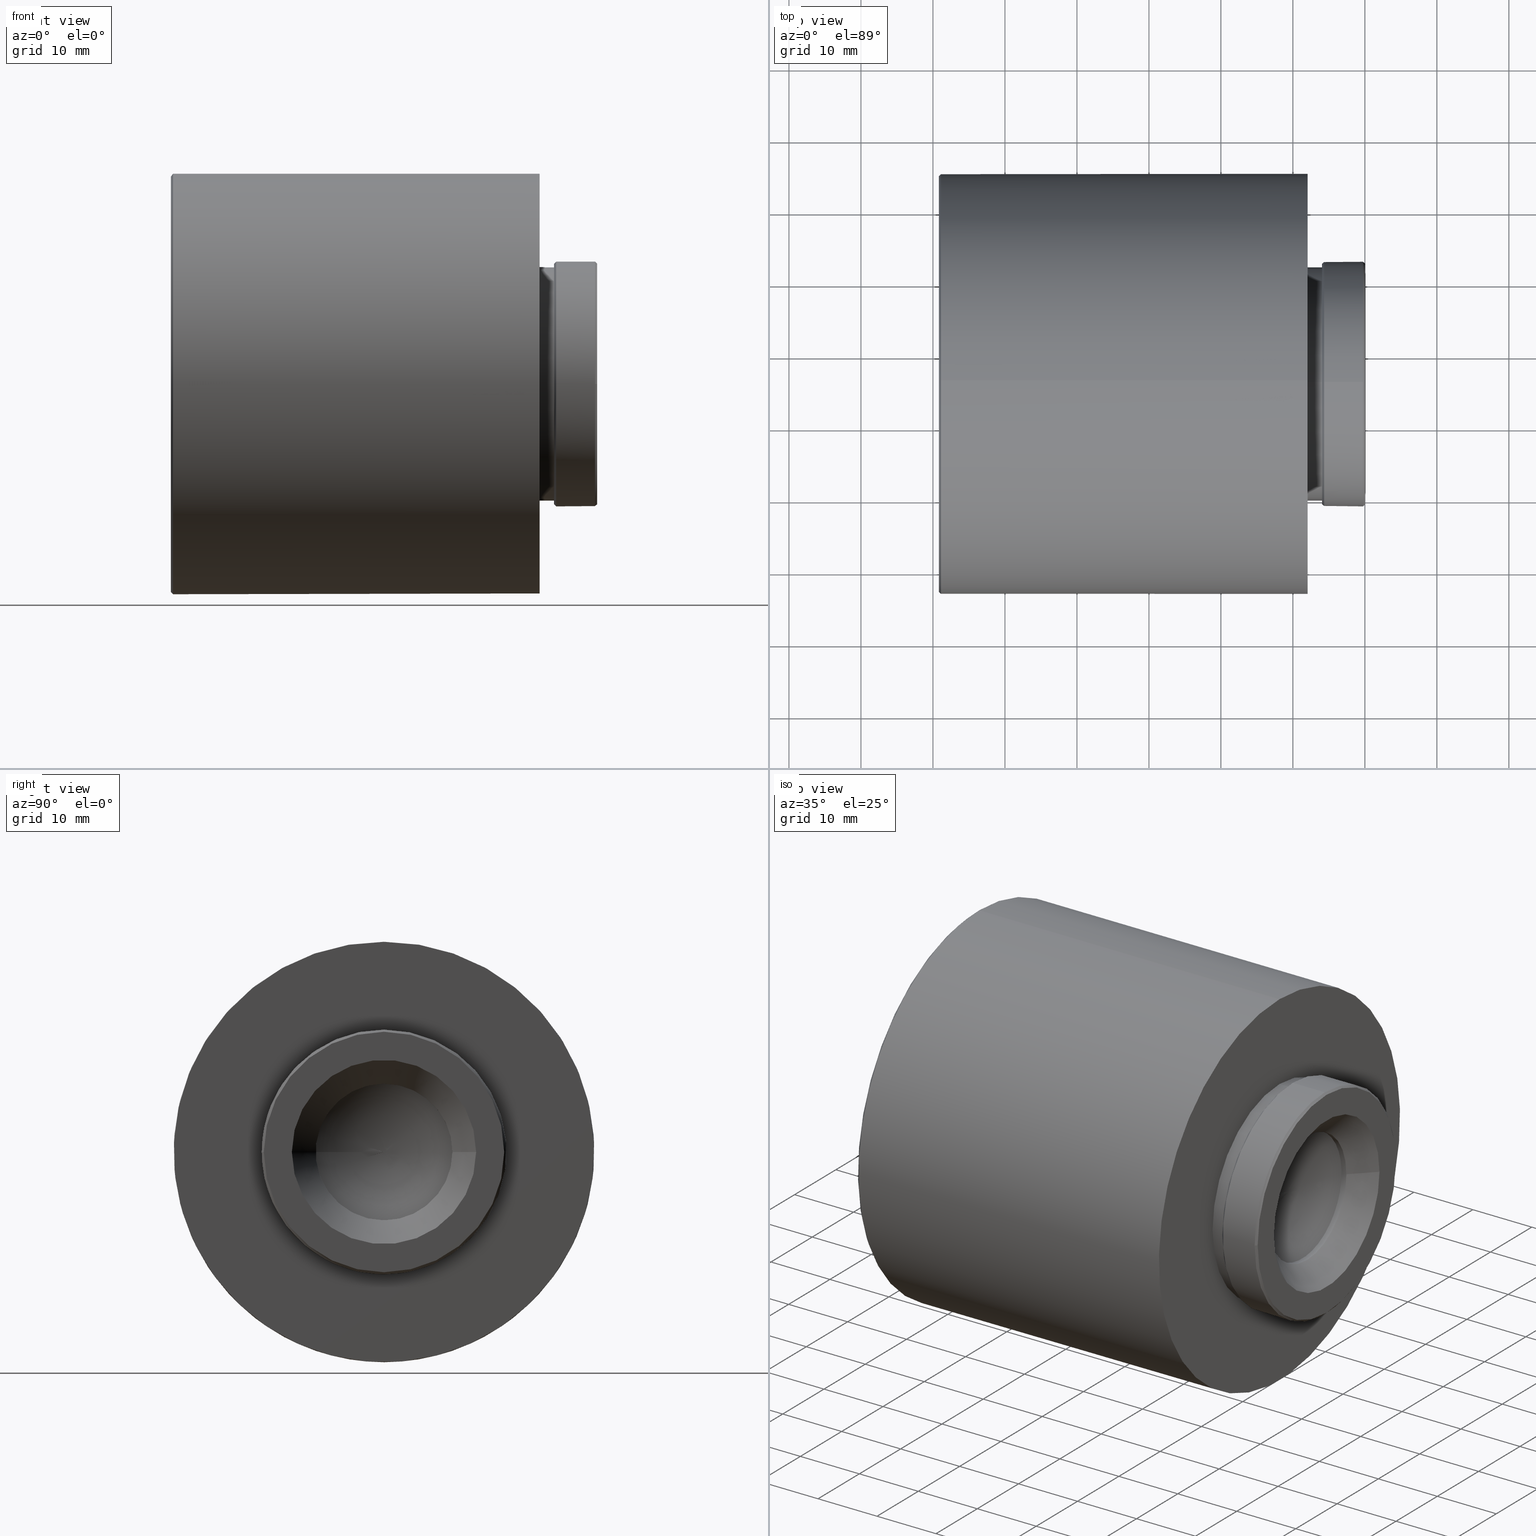
[diagram: canonical four-view strip — front | top / right | iso, engineering-drawing reading convention]
A machine part, canonical four-view strip (front | top / right | iso — engineering-drawing reading convention). The complete STEP part file that produces these views, byte-faithful:
ISO-10303-21;
HEADER;
FILE_DESCRIPTION (( 'STEP AP203' ),
    '1' );
FILE_NAME ('50mm.STEP',
    '2023-08-22T07:39:17',
    ( 'Windows User' ),
    ( 'P R C' ),
    'SwSTEP 2.0',
    'SolidWorks 2020',
    '' );
FILE_SCHEMA (( 'CONFIG_CONTROL_DESIGN' ));
ENDSEC;

DATA;
#1 = DIRECTION ( 'NONE',  ( 1.000000000000000000, -0.000000000000000000, 0.000000000000000000 ) ) ;
#2 = FACE_OUTER_BOUND ( 'NONE', #509, .T. ) ;
#3 = EDGE_LOOP ( 'NONE', ( #311 ) ) ;
#4 = DIRECTION ( 'NONE',  ( -1.000000000000000000, 0.000000000000000000, 0.000000000000000000 ) ) ;
#5 = AXIS2_PLACEMENT_3D ( 'NONE', #160, #501, #151 ) ;
#6 = DIRECTION ( 'NONE',  ( 0.000000000000000000, 0.000000000000000000, -1.000000000000000000 ) ) ;
#7 = AXIS2_PLACEMENT_3D ( 'NONE', #230, #285, #493 ) ;
#8 = EDGE_LOOP ( 'NONE', ( #313 ) ) ;
#9 = EDGE_CURVE ( 'NONE', #302, #302, #541, .T. ) ;
#10 = FACE_OUTER_BOUND ( 'NONE', #521, .T. ) ;
#11 = CARTESIAN_POINT ( 'NONE',  ( 7885.617387922355192, -204.0133481055009383, 0.000000000000000000 ) ) ;
#12 = ORIENTED_EDGE ( 'NONE', *, *, #553, .T. ) ;
#13 = CALENDAR_DATE ( 2023, 22, 8 ) ;
#14 = FACE_OUTER_BOUND ( 'NONE', #505, .T. ) ;
#15 = CARTESIAN_POINT ( 'NONE',  ( 7883.717387922353737, -204.0133481055009383, 27.35000000000037446 ) ) ;
#16 = EDGE_LOOP ( 'NONE', ( #300 ) ) ;
#17 = EDGE_CURVE ( 'NONE', #149, #149, #90, .T. ) ;
#18 = DIRECTION ( 'NONE',  ( -1.000000000000000000, -0.000000000000000000, -0.000000000000000000 ) ) ;
#19 = CIRCLE ( 'NONE', #123, 9.499999999999564793 ) ;
#20 = AXIS2_PLACEMENT_3D ( 'NONE', #529, #280, #33 ) ;
#21 = PRODUCT_RELATED_PRODUCT_CATEGORY ( 'detail', '', ( #170 ) ) ;
#22 = MANIFOLD_SOLID_BREP ( '����1', #365 ) ;
#23 = ORIENTED_EDGE ( 'NONE', *, *, #69, .T. ) ;
#24 = DIRECTION ( 'NONE',  ( 0.000000000000000000, 0.000000000000000000, 1.000000000000000000 ) ) ;
#25 = ADVANCED_FACE ( 'NONE', ( #572, #527 ), #176, .F. ) ;
#26 = CARTESIAN_POINT ( 'NONE',  ( 7923.427387749414265, -204.0133481054744777, -1.694065894508600678E-18 ) ) ;
#27 = CIRCLE ( 'NONE', #115, 27.74999999999999645 ) ;
#28 = CARTESIAN_POINT ( 'NONE',  ( 7884.717387922357375, -204.0133481055009383, 27.74999999999999645 ) ) ;
#29 = CARTESIAN_POINT ( 'NONE',  ( 7925.486479093689013, -212.8648362616712006, 1.694065894508600678E-18 ) ) ;
#30 = DIRECTION ( 'NONE',  ( -1.000000000000000000, 0.000000000000000000, 0.000000000000000000 ) ) ;
#31 = VERTEX_POINT ( 'NONE', #75 ) ;
#32 = CARTESIAN_POINT ( 'NONE',  ( 7924.753938377556551, -196.6624149685411282, -14.70186627394504164 ) ) ;
#33 = DIRECTION ( 'NONE',  ( 0.000000000000000000, 0.000000000000000000, 1.000000000000000000 ) ) ;
#34 = VERTEX_POINT ( 'NONE', #532 ) ;
#35 = DIRECTION ( 'NONE',  ( -1.000000000000000000, -0.000000000000000000, -0.000000000000000000 ) ) ;
#36 = FACE_OUTER_BOUND ( 'NONE', #648, .T. ) ;
#37 = CIRCLE ( 'NONE', #277, 27.75000000004411405 ) ;
#38 = AXIS2_PLACEMENT_3D ( 'NONE', #488, #539, #185 ) ;
#39 = CARTESIAN_POINT ( 'NONE',  ( 7923.986057118371718, -208.9824853522602837, 1.694065894508600678E-18 ) ) ;
#40 = FACE_OUTER_BOUND ( 'NONE', #121, .T. ) ;
#41 = DIRECTION ( 'NONE',  ( -1.000000000000000000, -0.000000000000000000, -0.000000000000000000 ) ) ;
#42 = DIRECTION ( 'NONE',  ( -1.000000000000000000, -0.000000000000000000, -0.000000000000000000 ) ) ;
#43 = ADVANCED_FACE ( 'NONE', ( #122, #268 ), #525, .F. ) ;
#44 = APPROVAL_ROLE ( '' ) ;
#45 = DIRECTION ( 'NONE',  ( 0.000000000000000000, 0.000000000000000000, -1.000000000000000000 ) ) ;
#46 = FACE_OUTER_BOUND ( 'NONE', #620, .T. ) ;
#47 = ORIENTED_EDGE ( 'NONE', *, *, #239, .T. ) ;
#48 = CC_DESIGN_DATE_AND_TIME_ASSIGNMENT ( #163, #57, ( #436 ) ) ;
#49 = AXIS2_PLACEMENT_3D ( 'NONE', #362, #632, #334 ) ;
#50 = CIRCLE ( 'NONE', #479, 27.35000000000037446 ) ;
#51 = CARTESIAN_POINT ( 'NONE',  ( 7924.038068922356615, 2.815183843889711050E-08, 0.000000000000000000 ) ) ;
#52 = CYLINDRICAL_SURFACE ( 'NONE', #124, 17.00000000000047251 ) ;
#53 = EDGE_LOOP ( 'NONE', ( #617 ) ) ;
#54 = CARTESIAN_POINT ( 'NONE',  ( 7884.031329051583270, -230.9651269956691522, -7.798698396183610271 ) ) ;
#55 = FACE_OUTER_BOUND ( 'NONE', #428, .T. ) ;
#56 = EDGE_LOOP ( 'NONE', ( #443 ) ) ;
#57 = DATE_TIME_ROLE ( 'classification_date' ) ;
#58 = FACE_BOUND ( 'NONE', #469, .T. ) ;
#59 = CC_DESIGN_PERSON_AND_ORGANIZATION_ASSIGNMENT ( #195, #601, ( #332 ) ) ;
#60 = CARTESIAN_POINT ( 'NONE',  ( 7930.038068922354796, -220.7133481055016944, 0.000000000000000000 ) ) ;
#61 = EDGE_LOOP ( 'NONE', ( #159 ) ) ;
#62 = CALENDAR_DATE ( 2023, 22, 8 ) ;
#63 = PLANE ( 'NONE',  #530 ) ;
#64 = CARTESIAN_POINT ( 'NONE',  ( 7930.038068922354796, -204.0133481055009383, 0.000000000000000000 ) ) ;
#65 = ORIENTED_EDGE ( 'NONE', *, *, #368, .F. ) ;
#66 = DIRECTION ( 'NONE',  ( 0.000000000000000000, 0.000000000000000000, 1.000000000000000000 ) ) ;
#67 = CARTESIAN_POINT ( 'NONE',  ( 7924.338068922354068, -204.0133481055009383, -17.00000000000001421 ) ) ;
#68 = EDGE_LOOP ( 'NONE', ( #114 ) ) ;
#69 = EDGE_CURVE ( 'NONE', #208, #208, #19, .T. ) ;
#70 = CARTESIAN_POINT ( 'NONE',  ( 7883.717387922355556, -7.002147650975270773E-08, 0.000000000000000000 ) ) ;
#71 = CARTESIAN_POINT ( 'NONE',  ( 7877.417387922359012, -6.996552126931153367E-08, 0.000000000000000000 ) ) ;
#72 = AXIS2_PLACEMENT_3D ( 'NONE', #498, #548, #106 ) ;
#73 = DESIGN_CONTEXT ( 'detailed design', #471, 'design' ) ;
#74 = DIRECTION ( 'NONE',  ( 0.000000000000000000, 0.000000000000000000, 1.000000000000000000 ) ) ;
#75 = CARTESIAN_POINT ( 'NONE',  ( 7885.617387922355192, -204.0133481055009383, 27.25000000000060751 ) ) ;
#76 = CARTESIAN_POINT ( 'NONE',  ( 7923.427387749412446, -204.0133481054744493, 6.011857508939859769E-11 ) ) ;
#77 = CARTESIAN_POINT ( 'NONE',  ( 7925.917387922367197, -213.5717338463544763, 0.000000000000000000 ) ) ;
#78 = CARTESIAN_POINT ( 'NONE',  ( 7925.917387922355374, -213.5717338463609565, 1.694065894508600678E-18 ) ) ;
#79 = CARTESIAN_POINT ( 'NONE',  ( 7924.338068922354068, -204.0133481055009383, 0.000000000000000000 ) ) ;
#80 = AXIS2_PLACEMENT_3D ( 'NONE', #105, #192, #349 ) ;
#81 = APPROVAL_PERSON_ORGANIZATION ( #96, #257, #44 ) ;
#82 = CARTESIAN_POINT ( 'NONE',  ( 7923.986057118370809, -208.9824853522602552, 9.938274493503762130 ) ) ;
#83 = FACE_OUTER_BOUND ( 'NONE', #8, .T. ) ;
#84 = EDGE_CURVE ( 'NONE', #565, #565, #37, .T. ) ;
#85 = CARTESIAN_POINT ( 'NONE',  ( 7924.753938377453778, -211.3642812424861859, 1.694065894508600678E-18 ) ) ;
#86 = CARTESIAN_POINT ( 'NONE',  ( 7884.717387922357375, 0.000000000000000000, 0.000000000000000000 ) ) ;
#87 = DIRECTION ( 'NONE',  ( 0.000000000000000000, 0.000000000000000000, 1.000000000000000000 ) ) ;
#88 = CARTESIAN_POINT ( 'NONE',  ( 7923.427387749406989, -204.8472025372736312, 1.667708863538230890 ) ) ;
#89 = DIRECTION ( 'NONE',  ( 0.000000000000000000, 0.000000000000000000, 1.000000000000000000 ) ) ;
#90 = CIRCLE ( 'NONE', #337, 27.95000000004438334 ) ;
#91 = AXIS2_PLACEMENT_3D ( 'NONE', #182, #634, #442 ) ;
#92 = FACE_OUTER_BOUND ( 'NONE', #467, .T. ) ;
#93 = EDGE_CURVE ( 'NONE', #608, #608, #516, .T. ) ;
#94 = DIRECTION ( 'NONE',  ( 0.000000000000000000, 0.000000000000000000, 1.000000000000000000 ) ) ;
#95 = ORIENTED_EDGE ( 'NONE', *, *, #154, .F. ) ;
#96 = PERSON_AND_ORGANIZATION ( #646, #366 ) ;
#97 = DIRECTION ( 'NONE',  ( 0.000000000000000000, 0.000000000000000000, -1.000000000000000000 ) ) ;
#98 = CC_DESIGN_PERSON_AND_ORGANIZATION_ASSIGNMENT ( #120, #171, ( #583 ) ) ;
#99 = PLANE ( 'NONE',  #308 ) ;
#100 = CARTESIAN_POINT ( 'NONE',  ( 7883.851557932202923, -215.3549095712787960, -30.23017818756218844 ) ) ;
#101 = CARTESIAN_POINT ( 'NONE',  ( 7871.117387922360649, -204.0133481055009383, 0.000000000000000000 ) ) ;
#102 = ORIENTED_EDGE ( 'NONE', *, *, #304, .T. ) ;
#103 = AXIS2_PLACEMENT_3D ( 'NONE', #481, #289, #581 ) ;
#104 = AXIS2_PLACEMENT_3D ( 'NONE', #64, #291, #613 ) ;
#105 = CARTESIAN_POINT ( 'NONE',  ( 7930.038068922354796, -204.0133481055009383, 0.000000000000000000 ) ) ;
#106 = DIRECTION ( 'NONE',  ( 0.000000000000000000, 0.000000000000000000, -1.000000000000000000 ) ) ;
#107 = EDGE_LOOP ( 'NONE', ( #153 ) ) ;
#108 = ADVANCED_FACE ( 'NONE', ( #371 ), #556, .F. ) ;
#109 = FACE_OUTER_BOUND ( 'NONE', #119, .T. ) ;
#110 = CARTESIAN_POINT ( 'NONE',  ( 7868.129146359433435, -204.0133481055009383, 0.000000000000000000 ) ) ;
#111 = EDGE_LOOP ( 'NONE', ( #512 ) ) ;
#112 = CARTESIAN_POINT ( 'NONE',  ( 7865.752709198794946, -215.3549095712787675, 12.52431229562725790 ) ) ;
#113 = CARTESIAN_POINT ( 'NONE',  ( 7868.129146359433435, -204.0133481055009383, 0.000000000000000000 ) ) ;
#114 = ORIENTED_EDGE ( 'NONE', *, *, #9, .F. ) ;
#115 = AXIS2_PLACEMENT_3D ( 'NONE', #418, #264, #465 ) ;
#116 = CARTESIAN_POINT ( 'NONE',  ( 7877.917387922356284, -4.664664143747144941E-08, 0.000000000000000000 ) ) ;
#117 = AXIS2_PLACEMENT_3D ( 'NONE', #11, #147, #401 ) ;
#118 = ADVANCED_FACE ( 'NONE', ( #229, #281 ), #335, .F. ) ;
#119 = EDGE_LOOP ( 'NONE', ( #415 ) ) ;
#120 = PERSON_AND_ORGANIZATION ( #646, #366 ) ;
#121 = EDGE_LOOP ( 'NONE', ( #652 ) ) ;
#122 = FACE_BOUND ( 'NONE', #462, .T. ) ;
#123 = AXIS2_PLACEMENT_3D ( 'NONE', #473, #174, #375 ) ;
#124 = AXIS2_PLACEMENT_3D ( 'NONE', #508, #359, #414 ) ;
#125 = CC_DESIGN_SECURITY_CLASSIFICATION ( #436, ( #583 ) ) ;
#126 = ADVANCED_FACE ( 'NONE', ( #588, #92 ), #288, .F. ) ;
#127 = VERTEX_POINT ( 'NONE', #466 ) ;
#128 = CARTESIAN_POINT ( 'NONE',  ( 7923.427387749413356, -204.0133481055345612, 1.694065894508600678E-18 ) ) ;
#129 = VERTEX_POINT ( 'NONE', #310 ) ;
#130 = CC_DESIGN_PERSON_AND_ORGANIZATION_ASSIGNMENT ( #611, #312, ( #436 ) ) ;
#131 = ORIENTED_EDGE ( 'NONE', *, *, #407, .F. ) ;
#132 = CARTESIAN_POINT ( 'NONE',  ( 7926.738068922353705, -204.0133481055009383, -9.499999999998204103 ) ) ;
#133 = CARTESIAN_POINT ( 'NONE',  ( 7923.986057118439930, -199.0442108587564292, -9.938274493503818974 ) ) ;
#134 = ADVANCED_FACE ( 'NONE', ( #484, #181 ), #432, .T. ) ;
#135 = DIRECTION ( 'NONE',  ( 0.000000000000000000, 0.000000000000000000, 1.000000000000000000 ) ) ;
#136 = CIRCLE ( 'NONE', #137, 17.00000000000001421 ) ;
#137 = AXIS2_PLACEMENT_3D ( 'NONE', #79, #242, #430 ) ;
#138 = CC_DESIGN_APPROVAL ( #213, ( #436 ) ) ;
#139 = CARTESIAN_POINT ( 'NONE',  ( 7923.427387749408808, -204.8472025372736596, 1.694065894508600678E-18 ) ) ;
#140 = PLANE ( 'NONE',  #396 ) ;
#141 = CARTESIAN_POINT ( 'NONE',  ( 7923.427387749420632, -203.1794936737354078, -1.667708863538286179 ) ) ;
#142 = CARTESIAN_POINT ( 'NONE',  ( 7868.129146359433435, -204.0133481055009383, 0.000000000000000000 ) ) ;
#143 = CC_DESIGN_DATE_AND_TIME_ASSIGNMENT ( #464, #416, ( #332 ) ) ;
#144 = CARTESIAN_POINT ( 'NONE',  ( 7925.917387922355374, -213.5717338463609565, -19.11677148167850859 ) ) ;
#145 = DIRECTION ( 'NONE',  ( -1.000000000000000000, -0.000000000000000000, -0.000000000000000000 ) ) ;
#146 = CARTESIAN_POINT ( 'NONE',  ( 7924.753938377455597, -211.3642812424861575, -14.70186627394498480 ) ) ;
#147 = DIRECTION ( 'NONE',  ( -1.000000000000000000, 0.000000000000000000, 0.000000000000000000 ) ) ;
#148 = CARTESIAN_POINT ( 'NONE',  ( 7883.877952462006760, -177.1731822840436621, 7.744730964376506321 ) ) ;
#149 = VERTEX_POINT ( 'NONE', #152 ) ;
#150 = ORIENTED_EDGE ( 'NONE', *, *, #269, .T. ) ;
#151 = DIRECTION ( 'NONE',  ( 0.000000000000000000, 0.000000000000000000, 1.000000000000000000 ) ) ;
#152 = CARTESIAN_POINT ( 'NONE',  ( 7877.917387922358103, -204.0133481055009383, 27.95000000004438334 ) ) ;
#153 = ORIENTED_EDGE ( 'NONE', *, *, #482, .T. ) ;
#154 = EDGE_CURVE ( 'NONE', #511, #511, #373, .T. ) ;
#155 = PERSON_AND_ORGANIZATION ( #646, #366 ) ;
#156 = CIRCLE ( 'NONE', #470, 29.20000000000001705 ) ;
#157 = CARTESIAN_POINT ( 'NONE',  ( 7895.094178066676250, -230.9651269956691522, 18.55616643682367339 ) ) ;
#158 = FACE_OUTER_BOUND ( 'NONE', #194, .T. ) ;
#159 = ORIENTED_EDGE ( 'NONE', *, *, #417, .T. ) ;
#160 = CARTESIAN_POINT ( 'NONE',  ( 7884.717387922357375, -204.0133481055009383, 0.000000000000000000 ) ) ;
#161 = FACE_BOUND ( 'NONE', #162, .T. ) ;
#162 = EDGE_LOOP ( 'NONE', ( #23 ) ) ;
#163 = DATE_AND_TIME ( #200, #427 ) ;
#164 = ADVANCED_FACE ( 'NONE', ( #606, #460 ), #354, .T. ) ;
#165 = CARTESIAN_POINT ( 'NONE',  ( 7870.817387922364105, 3.647316599798808341E-08, 0.000000000000000000 ) ) ;
#166 = VERTEX_POINT ( 'NONE', #535 ) ;
#167 = ORIENTED_EDGE ( 'NONE', *, *, #577, .F. ) ;
#168 = LOCAL_TIME ( 15, 39, 17.00000000000000000, #644 ) ;
#169 = ORIENTED_EDGE ( 'NONE', *, *, #93, .T. ) ;
#170 = PRODUCT ( '50mm', '50mm', '', ( #186 ) ) ;
#171 = PERSON_AND_ORGANIZATION_ROLE ( 'creator' ) ;
#172 = EDGE_LOOP ( 'NONE', ( #399 ) ) ;
#173 = ORIENTED_EDGE ( 'NONE', *, *, #17, .F. ) ;
#174 = DIRECTION ( 'NONE',  ( 1.000000000000000000, 0.000000000000000000, 0.000000000000000000 ) ) ;
#175 = AXIS2_PLACEMENT_3D ( 'NONE', #235, #41, #451 ) ;
#176 = PLANE ( 'NONE',  #237 ) ;
#177 = EDGE_CURVE ( 'NONE', #411, #411, #260, .T. ) ;
#178 = CARTESIAN_POINT ( 'NONE',  ( 7924.753938377452869, -211.3642812424861575, 14.70186627394498480 ) ) ;
#179 = FACE_BOUND ( 'NONE', #56, .T. ) ;
#180 =( LENGTH_UNIT ( ) NAMED_UNIT ( * ) SI_UNIT ( .MILLI., .METRE. ) );
#181 = FACE_OUTER_BOUND ( 'NONE', #263, .T. ) ;
#182 = CARTESIAN_POINT ( 'NONE',  ( 7871.117387922360649, -204.0133481055009383, 0.000000000000000000 ) ) ;
#183 = AXIS2_PLACEMENT_3D ( 'NONE', #101, #250, #212 ) ;
#184 = CARTESIAN_POINT ( 'NONE',  ( 7925.486479093810885, -195.1618599493662600, 17.70297631230499746 ) ) ;
#185 = DIRECTION ( 'NONE',  ( -6.938893903915426220E-14, 1.000000000000000000, 0.000000000000000000 ) ) ;
#186 = MECHANICAL_CONTEXT ( 'NONE', #649, 'mechanical' ) ;
#187 = CARTESIAN_POINT ( 'NONE',  ( 7923.427387749421541, -203.1794936737353794, -1.694065894508600678E-18 ) ) ;
#188 = FACE_BOUND ( 'NONE', #303, .T. ) ;
#189 = PERSON_AND_ORGANIZATION ( #646, #366 ) ;
#190 = FACE_OUTER_BOUND ( 'NONE', #499, .T. ) ;
#191 = CIRCLE ( 'NONE', #7, 16.20000000000165841 ) ;
#192 = DIRECTION ( 'NONE',  ( -1.000000000000000000, -2.612289469706107927E-14, -0.000000000000000000 ) ) ;
#193 = DIRECTION ( 'NONE',  ( 1.000000000000000000, 0.000000000000000000, 0.000000000000000000 ) ) ;
#194 = EDGE_LOOP ( 'NONE', ( #65 ) ) ;
#195 = PERSON_AND_ORGANIZATION ( #646, #366 ) ;
#196 = FACE_OUTER_BOUND ( 'NONE', #53, .T. ) ;
#197 = ADVANCED_FACE ( 'NONE', ( #58, #10 ), #63, .T. ) ;
#198 = FACE_OUTER_BOUND ( 'NONE', #61, .T. ) ;
#199 = ORIENTED_EDGE ( 'NONE', *, *, #154, .T. ) ;
#200 = CALENDAR_DATE ( 2023, 22, 8 ) ;
#201 = DIRECTION ( 'NONE',  ( -1.000000000000000000, -0.000000000000000000, -0.000000000000000000 ) ) ;
#202 = DIRECTION ( 'NONE',  ( -1.000000000000000000, -0.000000000000000000, -0.000000000000000000 ) ) ;
#203 = ORIENTED_EDGE ( 'NONE', *, *, #314, .F. ) ;
#204 = CIRCLE ( 'NONE', #286, 9.558385740832758160 ) ;
#205 =( GEOMETRIC_REPRESENTATION_CONTEXT ( 3 ) GLOBAL_UNCERTAINTY_ASSIGNED_CONTEXT ( ( #372 ) ) GLOBAL_UNIT_ASSIGNED_CONTEXT ( ( #180, #231, #363 ) ) REPRESENTATION_CONTEXT ( 'NONE', 'WORKASPACE' ) );
#206 = DIRECTION ( 'NONE',  ( 0.000000000000000000, 0.000000000000000000, 1.000000000000000000 ) ) ;
#207 = LOCAL_TIME ( 15, 39, 17.00000000000000000, #571 ) ;
#208 = VERTEX_POINT ( 'NONE', #256 ) ;
#209 = ORIENTED_EDGE ( 'NONE', *, *, #9, .T. ) ;
#210 = ADVANCED_FACE ( 'NONE', ( #249, #196 ), #301, .F. ) ;
#211 = FACE_BOUND ( 'NONE', #475, .T. ) ;
#212 = DIRECTION ( 'NONE',  ( 0.000000000000000000, 0.000000000000000000, 1.000000000000000000 ) ) ;
#213 = APPROVAL ( #361, 'δָ��' ) ;
#214 = APPROVAL_DATE_TIME ( #520, #213 ) ;
#215 = DIRECTION ( 'NONE',  ( -1.000000000000000000, 0.000000000000000000, 0.000000000000000000 ) ) ;
#216 = ORIENTED_EDGE ( 'NONE', *, *, #314, .T. ) ;
#217 = SHAPE_DEFINITION_REPRESENTATION ( #274, #586 ) ;
#218 = AXIS2_PLACEMENT_3D ( 'NONE', #165, #413, #497 ) ;
#219 = AXIS2_PLACEMENT_3D ( 'NONE', #110, #202, #651 ) ;
#220 = DIRECTION ( 'NONE',  ( 0.000000000000000000, 0.000000000000000000, 1.000000000000000000 ) ) ;
#221 = EDGE_CURVE ( 'NONE', #299, #299, #607, .T. ) ;
#222 = CARTESIAN_POINT ( 'NONE',  ( 7877.417387922358103, -204.0133481055009383, 0.000000000000000000 ) ) ;
#223 = DIRECTION ( 'NONE',  ( -1.000000000000000000, -0.000000000000000000, -0.000000000000000000 ) ) ;
#224 = VERTEX_POINT ( 'NONE', #483 ) ;
#225 = CARTESIAN_POINT ( 'NONE',  ( 7923.427387749412446, -204.0133481054744493, -6.011857847751812117E-11 ) ) ;
#226 = AXIS2_PLACEMENT_3D ( 'NONE', #533, #241, #279 ) ;
#227 = ADVANCED_FACE ( 'NONE', ( #211, #650 ), #400, .T. ) ;
#228 = VERTEX_POINT ( 'NONE', #265 ) ;
#229 = FACE_OUTER_BOUND ( 'NONE', #600, .T. ) ;
#230 = CARTESIAN_POINT ( 'NONE',  ( 7922.038068922356615, -204.0133481055009383, 0.000000000000000000 ) ) ;
#231 =( NAMED_UNIT ( * ) PLANE_ANGLE_UNIT ( ) SI_UNIT ( $, .RADIAN. ) );
#232 = CARTESIAN_POINT ( 'NONE',  ( 7925.486479093688104, -212.8648362616711722, 17.70297631230494062 ) ) ;
#233 = FACE_BOUND ( 'NONE', #424, .T. ) ;
#234 = CARTESIAN_POINT ( 'NONE',  ( 7883.717387922357375, -204.0133481055009383, 27.74999999999999645 ) ) ;
#235 = CARTESIAN_POINT ( 'NONE',  ( 7929.738068922353705, -204.0133481055009383, 0.000000000000000000 ) ) ;
#236 = DIRECTION ( 'NONE',  ( -1.000000000000000000, -0.000000000000000000, -0.000000000000000000 ) ) ;
#237 = AXIS2_PLACEMENT_3D ( 'NONE', #70, #266, #576 ) ;
#238 = CARTESIAN_POINT ( 'NONE',  ( 7925.486479093689923, -212.8648362616711722, -17.70297631230494062 ) ) ;
#239 = EDGE_CURVE ( 'NONE', #584, #584, #204, .T. ) ;
#240 = CARTESIAN_POINT ( 'NONE',  ( 7924.038068922356615, -204.0133481055009383, 0.000000000000000000 ) ) ;
#241 = DIRECTION ( 'NONE',  ( -1.000000000000000000, -0.000000000000000000, -0.000000000000000000 ) ) ;
#242 = DIRECTION ( 'NONE',  ( -1.000000000000000000, -0.000000000000000000, -0.000000000000000000 ) ) ;
#243 = EDGE_LOOP ( 'NONE', ( #169 ) ) ;
#244 = CARTESIAN_POINT ( 'NONE',  ( 7883.817908520738456, -192.8527843456155608, -30.26478230138167191 ) ) ;
#245 = CARTESIAN_POINT ( 'NONE',  ( 7886.827443883446904, -204.0133481055009383, 26.49999999998009415 ) ) ;
#246 = ORIENTED_EDGE ( 'NONE', *, *, #84, .T. ) ;
#247 = AXIS2_PLACEMENT_3D ( 'NONE', #142, #323, #89 ) ;
#248 = ADVANCED_FACE ( 'NONE', ( #597, #397 ), #547, .T. ) ;
#249 = FACE_BOUND ( 'NONE', #3, .T. ) ;
#250 = DIRECTION ( 'NONE',  ( 1.000000000000000000, 0.000000000000000000, 0.000000000000000000 ) ) ;
#251 = EDGE_LOOP ( 'NONE', ( #167 ) ) ;
#252 = DIRECTION ( 'NONE',  ( -1.000000000000000000, 0.000000000000000000, 0.000000000000000000 ) ) ;
#253 = DIRECTION ( 'NONE',  ( -1.000000000000000000, 0.000000000000000000, 0.000000000000000000 ) ) ;
#254 = EDGE_LOOP ( 'NONE', ( #406 ) ) ;
#255 = CARTESIAN_POINT ( 'NONE',  ( 7865.790736222619671, -215.3549095712787675, -12.66764142552375816 ) ) ;
#256 = CARTESIAN_POINT ( 'NONE',  ( 7925.917387922354465, -204.0133481055009383, 9.499999999999564793 ) ) ;
#257 = APPROVAL ( #496, 'δָ��' ) ;
#258 = ORIENTED_EDGE ( 'NONE', *, *, #221, .T. ) ;
#259 = CALENDAR_DATE ( 2023, 22, 8 ) ;
#260 = CIRCLE ( 'NONE', #80, 16.70000000000074181 ) ;
#261 = CIRCLE ( 'NONE', #183, 29.20000000000001705 ) ;
#262 = DIRECTION ( 'NONE',  ( -1.000000000000000000, -0.000000000000000000, -0.000000000000000000 ) ) ;
#263 = EDGE_LOOP ( 'NONE', ( #395 ) ) ;
#264 = DIRECTION ( 'NONE',  ( -1.000000000000000000, -0.000000000000000000, -0.000000000000000000 ) ) ;
#265 = CARTESIAN_POINT ( 'NONE',  ( 7877.417387922359012, -204.0133481055009383, 27.95000000004438334 ) ) ;
#266 = DIRECTION ( 'NONE',  ( -1.000000000000000000, 0.000000000000000000, 0.000000000000000000 ) ) ;
#267 = PERSON_AND_ORGANIZATION ( #646, #366 ) ;
#268 = FACE_OUTER_BOUND ( 'NONE', #275, .T. ) ;
#269 = EDGE_CURVE ( 'NONE', #224, #224, #394, .T. ) ;
#270 = AXIS2_PLACEMENT_3D ( 'NONE', #381, #35, #494 ) ;
#271 = APPROVAL_PERSON_ORGANIZATION ( #155, #346, #409 ) ;
#272 = EDGE_LOOP ( 'NONE', ( #563 ) ) ;
#273 = DIRECTION ( 'NONE',  ( -1.000000000000000000, 0.000000000000000000, 0.000000000000000000 ) ) ;
#274 = PRODUCT_DEFINITION_SHAPE ( 'NONE', 'NONE',  #332 ) ;
#275 = EDGE_LOOP ( 'NONE', ( #614 ) ) ;
#276 = CC_DESIGN_PERSON_AND_ORGANIZATION_ASSIGNMENT ( #189, #340, ( #170 ) ) ;
#277 = AXIS2_PLACEMENT_3D ( 'NONE', #222, #223, #220 ) ;
#278 = CARTESIAN_POINT ( 'NONE',  ( 7923.986057118440840, -199.0442108587564860, -1.694065894508600678E-18 ) ) ;
#279 = DIRECTION ( 'NONE',  ( 0.000000000000000000, 0.000000000000000000, 1.000000000000000000 ) ) ;
#280 = DIRECTION ( 'NONE',  ( -1.000000000000000000, -0.000000000000000000, -0.000000000000000000 ) ) ;
#281 = FACE_OUTER_BOUND ( 'NONE', #519, .T. ) ;
#282 = CARTESIAN_POINT ( 'NONE',  ( 7868.129146359433435, -204.0133481055009383, 0.000000000000000000 ) ) ;
#283 = ADVANCED_FACE ( 'NONE', ( #455 ), #297, .T. ) ;
#284 = CARTESIAN_POINT ( 'NONE',  ( 7923.528681029413747, -206.5166780875054542, 1.694065894508600678E-18 ) ) ;
#285 = DIRECTION ( 'NONE',  ( 1.000000000000000000, 0.000000000000000000, 0.000000000000000000 ) ) ;
#286 = AXIS2_PLACEMENT_3D ( 'NONE', #645, #615, #410 ) ;
#287 = CONICAL_SURFACE ( 'NONE', #117, 27.25000000000029132, 0.7853981633980333665 ) ;
#288 = CYLINDRICAL_SURFACE ( 'NONE', #226, 27.74999999999999645 ) ;
#289 = DIRECTION ( 'NONE',  ( 1.000000000000000000, 0.000000000000000000, 0.000000000000000000 ) ) ;
#290 = CARTESIAN_POINT ( 'NONE',  ( 7895.069841557115979, -177.1731822840436337, -18.69360900155379213 ) ) ;
#291 = DIRECTION ( 'NONE',  ( -1.000000000000000000, -3.469446951957716897E-14, 0.000000000000000000 ) ) ;
#292 = ADVANCED_FACE ( 'NONE', ( #561, #109 ), #513, .T. ) ;
#293 = CARTESIAN_POINT ( 'NONE',  ( 7883.760427746591631, -215.3549095712787960, 30.14129418943056749 ) ) ;
#294 = CARTESIAN_POINT ( 'NONE',  ( 7925.917387922389025, -7.077855818868297771E-06, 0.000000000000000000 ) ) ;
#295 = EDGE_LOOP ( 'NONE', ( #364 ) ) ;
#296 = LOCAL_TIME ( 15, 39, 17.00000000000000000, #403 ) ;
#297 =( BOUNDED_SURFACE ( )  B_SPLINE_SURFACE ( 3, 3, ( 
 ( #290, #510, #148, #345 ),
 ( #244, #444, #554, #507 ),
 ( #100, #255, #112, #293 ),
 ( #298, #54, #404, #157 ) ),
 .UNSPECIFIED., .F., .F., .T. ) 
 B_SPLINE_SURFACE_WITH_KNOTS ( ( 4, 4 ),
 ( 4, 4 ),
 ( 0.000000000000000000, 1.000000000000000000 ),
 ( 0.000000000000000000, 1.000000000000000000 ),
 .UNSPECIFIED. ) 
 GEOMETRIC_REPRESENTATION_ITEM ( )  RATIONAL_B_SPLINE_SURFACE ( (
 ( 1.000000000000000000, 0.7988195099281881761, 0.7988195099281881761, 1.000000000000000000),
 ( 0.7968424340985801324, 0.6365332826966123569, 0.6365332826966123569, 0.7968424340985801324),
 ( 0.7968424340985801324, 0.6365332826966123569, 0.6365332826966123569, 0.7968424340985801324),
 ( 1.000000000000000000, 0.7988195099281881761, 0.7988195099281881761, 1.000000000000000000) ) ) 
 REPRESENTATION_ITEM ( '' )  SURFACE ( )  );
#298 = CARTESIAN_POINT ( 'NONE',  ( 7895.150281393925070, -230.9651269956691522, -18.61088692269655809 ) ) ;
#299 = VERTEX_POINT ( 'NONE', #478 ) ;
#300 = ORIENTED_EDGE ( 'NONE', *, *, #431, .T. ) ;
#301 = PLANE ( 'NONE',  #626 ) ;
#302 = VERTEX_POINT ( 'NONE', #245 ) ;
#303 = EDGE_LOOP ( 'NONE', ( #515 ) ) ;
#304 = EDGE_CURVE ( 'NONE', #569, #569, #555, .T. ) ;
#305 = FACE_OUTER_BOUND ( 'NONE', #419, .T. ) ;
#306 = ORIENTED_EDGE ( 'NONE', *, *, #553, .F. ) ;
#307 = DATE_AND_TIME ( #62, #296 ) ;
#308 = AXIS2_PLACEMENT_3D ( 'NONE', #294, #253, #647 ) ;
#309 = DIRECTION ( 'NONE',  ( 0.000000000000000000, 0.000000000000000000, 1.000000000000000000 ) ) ;
#310 = CARTESIAN_POINT ( 'NONE',  ( 7871.117387922360649, -204.0133481055009383, 29.20000000000001705 ) ) ;
#311 = ORIENTED_EDGE ( 'NONE', *, *, #482, .F. ) ;
#312 = PERSON_AND_ORGANIZATION_ROLE ( 'classification_officer' ) ;
#313 = ORIENTED_EDGE ( 'NONE', *, *, #93, .F. ) ;
#314 = EDGE_CURVE ( 'NONE', #329, #329, #27, .T. ) ;
#315 = EDGE_LOOP ( 'NONE', ( #574 ) ) ;
#316 = CIRCLE ( 'NONE', #20, 27.95000000004438334 ) ;
#317 = DIRECTION ( 'NONE',  ( -1.000000000000000000, -0.000000000000000000, -0.000000000000000000 ) ) ;
#318 = CARTESIAN_POINT ( 'NONE',  ( 7886.367387922351554, -204.0133481055009383, 26.50000000000293809 ) ) ;
#319 = ADVANCED_FACE ( 'NONE', ( #14, #618 ), #523, .T. ) ;
#320 = CARTESIAN_POINT ( 'NONE',  ( 7923.427387749412446, -204.0133481055345612, 6.006306732628686335E-11 ) ) ;
#321 = VERTEX_POINT ( 'NONE', #15 ) ;
#322 = EDGE_LOOP ( 'NONE', ( #526 ) ) ;
#323 = DIRECTION ( 'NONE',  ( -1.000000000000000000, -0.000000000000000000, -0.000000000000000000 ) ) ;
#324 = VERTEX_POINT ( 'NONE', #67 ) ;
#325 = AXIS2_PLACEMENT_3D ( 'NONE', #589, #637, #135 ) ;
#326 = CARTESIAN_POINT ( 'NONE',  ( 7925.917387922486341, -194.4549623646824159, 19.11677148167856188 ) ) ;
#327 = AXIS2_PLACEMENT_3D ( 'NONE', #445, #193, #355 ) ;
#328 = CYLINDRICAL_SURFACE ( 'NONE', #325, 26.49999999998009415 ) ;
#329 = VERTEX_POINT ( 'NONE', #234 ) ;
#330 = CARTESIAN_POINT ( 'NONE',  ( 7923.528681029448308, -201.5100181235049774, 5.006659964000459873 ) ) ;
#331 = DIRECTION ( 'NONE',  ( 0.000000000000000000, 0.000000000000000000, 1.000000000000000000 ) ) ;
#332 = PRODUCT_DEFINITION ( 'δ֪', '', #583, #73 ) ;
#333 = CARTESIAN_POINT ( 'NONE',  ( 7923.427387749409718, -204.8472025372736312, -1.667708863538230890 ) ) ;
#334 = DIRECTION ( 'NONE',  ( 5.224578939412215224E-14, -1.000000000000000000, 0.000000000000000000 ) ) ;
#335 = CYLINDRICAL_SURFACE ( 'NONE', #458, 27.25000000000060751 ) ;
#336 = DIRECTION ( 'NONE',  ( 0.000000000000000000, 0.000000000000000000, 1.000000000000000000 ) ) ;
#337 = AXIS2_PLACEMENT_3D ( 'NONE', #522, #18, #74 ) ;
#338 = ORIENTED_EDGE ( 'NONE', *, *, #304, .F. ) ;
#339 = AXIS2_PLACEMENT_3D ( 'NONE', #113, #456, #503 ) ;
#340 = PERSON_AND_ORGANIZATION_ROLE ( 'design_owner' ) ;
#341 = CARTESIAN_POINT ( 'NONE',  ( 7925.486479093689013, -212.8648362616712006, 1.694065894508600678E-18 ) ) ;
#342 = ADVANCED_FACE ( 'NONE', ( #36, #393 ), #328, .F. ) ;
#343 = DIRECTION ( 'NONE',  ( -1.000000000000000000, -0.000000000000000000, -0.000000000000000000 ) ) ;
#344 = CALENDAR_DATE ( 2023, 22, 8 ) ;
#345 = CARTESIAN_POINT ( 'NONE',  ( 7895.013488860566213, -177.1731822840436337, 18.63864529286374250 ) ) ;
#346 = APPROVAL ( #623, 'δָ��' ) ;
#347 = CARTESIAN_POINT ( 'NONE',  ( 7877.417387922358103, -204.0133481055009383, 27.75000000004411405 ) ) ;
#348 = EDGE_LOOP ( 'NONE', ( #566 ) ) ;
#349 = DIRECTION ( 'NONE',  ( 0.000000000000000000, -1.000000000000000000, 0.000000000000000000 ) ) ;
#350 = CARTESIAN_POINT ( 'NONE',  ( 7929.738068922353705, -204.0133481055009383, 17.00000000000047251 ) ) ;
#351 = ORIENTED_EDGE ( 'NONE', *, *, #407, .T. ) ;
#352 = AXIS2_PLACEMENT_3D ( 'NONE', #240, #439, #640 ) ;
#353 = APPROVAL_DATE_TIME ( #307, #346 ) ;
#354 = PLANE ( 'NONE',  #489 ) ;
#355 = DIRECTION ( 'NONE',  ( 0.000000000000000000, 0.000000000000000000, 1.000000000000000000 ) ) ;
#356 = ORIENTED_EDGE ( 'NONE', *, *, #628, .F. ) ;
#357 = ADVANCED_FACE ( 'NONE', ( #596, #179 ), #380, .T. ) ;
#358 = CARTESIAN_POINT ( 'NONE',  ( 7924.038068922356615, -204.0133481055009383, 0.000000000000000000 ) ) ;
#359 = DIRECTION ( 'NONE',  ( -1.000000000000000000, -0.000000000000000000, -0.000000000000000000 ) ) ;
#360 = EDGE_LOOP ( 'NONE', ( #552 ) ) ;
#361 = APPROVAL_STATUS ( 'not_yet_approved' ) ;
#362 = CARTESIAN_POINT ( 'NONE',  ( 7929.738068922353705, -204.0133481055009383, 0.000000000000000000 ) ) ;
#363 =( NAMED_UNIT ( * ) SI_UNIT ( $, .STERADIAN. ) SOLID_ANGLE_UNIT ( ) );
#364 = ORIENTED_EDGE ( 'NONE', *, *, #69, .F. ) ;
#365 = CLOSED_SHELL ( 'NONE', ( #528, #134, #383, #210, #227, #248, #514, #197, #43, #357, #598, #540, #292, #319, #390, #164, #25, #440, #126, #463, #425, #118, #590, #342, #283, #108 ) ) ;
#366 = ORGANIZATION ( 'δָ��', 'δָ��', '' ) ;
#367 = APPLICATION_PROTOCOL_DEFINITION ( 'international standard', 'config_control_design', 1994, #649 ) ;
#368 = EDGE_CURVE ( 'NONE', #324, #324, #136, .T. ) ;
#369 = ORIENTED_EDGE ( 'NONE', *, *, #506, .T. ) ;
#370 = EDGE_LOOP ( 'NONE', ( #422 ) ) ;
#371 = FACE_OUTER_BOUND ( 'NONE', #111, .T. ) ;
#372 = UNCERTAINTY_MEASURE_WITH_UNIT (LENGTH_MEASURE( 1.000000000000000082E-05 ), #180, 'distance_accuracy_value', 'NONE');
#373 = CIRCLE ( 'NONE', #175, 17.00000000000047251 ) ;
#374 = APPROVAL_PERSON_ORGANIZATION ( #560, #213, #567 ) ;
#375 = DIRECTION ( 'NONE',  ( 0.000000000000000000, 0.000000000000000000, 1.000000000000000000 ) ) ;
#376 = CARTESIAN_POINT ( 'NONE',  ( 7923.427387749415175, -204.0133481055345612, -6.006306393814282172E-11 ) ) ;
#377 = VERTEX_POINT ( 'NONE', #619 ) ;
#378 = CARTESIAN_POINT ( 'NONE',  ( 7923.986057118373537, -208.9824853522602552, -9.938274493503762130 ) ) ;
#379 = FACE_OUTER_BOUND ( 'NONE', #412, .T. ) ;
#380 = CONICAL_SURFACE ( 'NONE', #103, 17.00000000000001421, 0.7853981634018776248 ) ;
#381 = CARTESIAN_POINT ( 'NONE',  ( 7868.129146359433435, -204.0133481055009383, 0.000000000000000000 ) ) ;
#382 = CIRCLE ( 'NONE', #104, 12.79999999998487858 ) ;
#383 = ADVANCED_FACE ( 'NONE', ( #433, #534 ), #595, .T. ) ;
#384 = CARTESIAN_POINT ( 'NONE',  ( 7885.617387922355192, -204.0133481055009383, 0.000000000000000000 ) ) ;
#385 = CARTESIAN_POINT ( 'NONE',  ( 0.000000000000000000, 0.000000000000000000, 0.000000000000000000 ) ) ;
#386 = DIRECTION ( 'NONE',  ( -1.000000000000000000, -0.000000000000000000, -0.000000000000000000 ) ) ;
#387 = CYLINDRICAL_SURFACE ( 'NONE', #247, 9.499999999999564793 ) ;
#388 = CARTESIAN_POINT ( 'NONE',  ( 7923.528681029449217, -201.5100181235050059, -1.694065894508600678E-18 ) ) ;
#389 = CARTESIAN_POINT ( 'NONE',  ( 7922.038068922356615, -204.0133481055009383, 0.000000000000000000 ) ) ;
#390 = ADVANCED_FACE ( 'NONE', ( #83, #379 ), #642, .F. ) ;
#391 = CARTESIAN_POINT ( 'NONE',  ( 7924.753938377453778, -211.3642812424861859, 1.694065894508600678E-18 ) ) ;
#392 = AXIS2_PLACEMENT_3D ( 'NONE', #116, #215, #309 ) ;
#393 = FACE_OUTER_BOUND ( 'NONE', #68, .T. ) ;
#394 = CIRCLE ( 'NONE', #5, 27.25000000000060751 ) ;
#395 = ORIENTED_EDGE ( 'NONE', *, *, #577, .T. ) ;
#396 = AXIS2_PLACEMENT_3D ( 'NONE', #86, #30, #331 ) ;
#397 = FACE_OUTER_BOUND ( 'NONE', #315, .T. ) ;
#398 = DIRECTION ( 'NONE',  ( 1.000000000000000000, 0.000000000000000000, 0.000000000000000000 ) ) ;
#399 = ORIENTED_EDGE ( 'NONE', *, *, #368, .T. ) ;
#400 = PLANE ( 'NONE',  #218 ) ;
#401 = DIRECTION ( 'NONE',  ( 0.000000000000000000, 0.000000000000000000, 1.000000000000000000 ) ) ;
#402 = EDGE_LOOP ( 'NONE', ( #338 ) ) ;
#403 = COORDINATED_UNIVERSAL_TIME_OFFSET ( 8, 0, .AHEAD. ) ;
#404 = CARTESIAN_POINT ( 'NONE',  ( 7884.007918119765236, -230.9651269956691522, 7.710459345369816475 ) ) ;
#405 = CARTESIAN_POINT ( 'NONE',  ( 7883.717387922353737, -204.0133481055009383, 0.000000000000000000 ) ) ;
#406 = ORIENTED_EDGE ( 'NONE', *, *, #177, .T. ) ;
#407 = EDGE_CURVE ( 'NONE', #486, #486, #543, .T. ) ;
#408 = CIRCLE ( 'NONE', #352, 16.20000000000165841 ) ;
#409 = APPROVAL_ROLE ( '' ) ;
#410 = DIRECTION ( 'NONE',  ( -6.876182321983070780E-12, -1.000000000000000000, 0.000000000000000000 ) ) ;
#411 = VERTEX_POINT ( 'NONE', #60 ) ;
#412 = EDGE_LOOP ( 'NONE', ( #356 ) ) ;
#413 = DIRECTION ( 'NONE',  ( -1.000000000000000000, 0.000000000000000000, 0.000000000000000000 ) ) ;
#414 = DIRECTION ( 'NONE',  ( 0.000000000000000000, 0.000000000000000000, 1.000000000000000000 ) ) ;
#415 = ORIENTED_EDGE ( 'NONE', *, *, #17, .T. ) ;
#416 = DATE_TIME_ROLE ( 'creation_date' ) ;
#417 = EDGE_CURVE ( 'NONE', #228, #228, #316, .T. ) ;
#418 = CARTESIAN_POINT ( 'NONE',  ( 7883.717387922357375, -204.0133481055009383, 0.000000000000000000 ) ) ;
#419 = EDGE_LOOP ( 'NONE', ( #173 ) ) ;
#420 = AXIS2_PLACEMENT_3D ( 'NONE', #625, #317, #24 ) ;
#421 = LOCAL_TIME ( 15, 39, 17.00000000000000000, #605 ) ;
#422 = ORIENTED_EDGE ( 'NONE', *, *, #628, .T. ) ;
#423 = CARTESIAN_POINT ( 'NONE',  ( 7877.917387922354465, -204.0133481055009383, 0.000000000000000000 ) ) ;
#424 = EDGE_LOOP ( 'NONE', ( #150 ) ) ;
#425 = ADVANCED_FACE ( 'NONE', ( #233, #190 ), #140, .T. ) ;
#426 = CARTESIAN_POINT ( 'NONE',  ( 7924.038068922356615, -204.0133481055009383, 16.20000000000165841 ) ) ;
#427 = LOCAL_TIME ( 15, 39, 17.00000000000000000, #454 ) ;
#428 = EDGE_LOOP ( 'NONE', ( #199 ) ) ;
#429 = CARTESIAN_POINT ( 'NONE',  ( 7925.917387922355374, -213.5717338463609565, 1.694065894508600678E-18 ) ) ;
#430 = DIRECTION ( 'NONE',  ( 0.000000000000000000, 0.000000000000000000, -1.000000000000000000 ) ) ;
#431 = EDGE_CURVE ( 'NONE', #31, #31, #517, .T. ) ;
#432 = CYLINDRICAL_SURFACE ( 'NONE', #270, 29.20000000000001705 ) ;
#433 = FACE_OUTER_BOUND ( 'NONE', #251, .T. ) ;
#434 = AXIS2_PLACEMENT_3D ( 'NONE', #568, #518, #66 ) ;
#435 = CARTESIAN_POINT ( 'NONE',  ( 7925.486479093810885, -195.1618599493662600, -17.70297631230499746 ) ) ;
#436 = SECURITY_CLASSIFICATION ( '', '', #573 ) ;
#437 = FACE_OUTER_BOUND ( 'NONE', #295, .T. ) ;
#438 = CARTESIAN_POINT ( 'NONE',  ( 7925.917387922355374, -213.5717338463609565, 19.11677148167850859 ) ) ;
#439 = DIRECTION ( 'NONE',  ( -1.000000000000000000, -0.000000000000000000, -0.000000000000000000 ) ) ;
#440 = ADVANCED_FACE ( 'NONE', ( #188, #587 ), #446, .F. ) ;
#441 = CARTESIAN_POINT ( 'NONE',  ( 7923.528681029413747, -206.5166780875054542, 1.694065894508600678E-18 ) ) ;
#442 = DIRECTION ( 'NONE',  ( 0.000000000000000000, 0.000000000000000000, -1.000000000000000000 ) ) ;
#443 = ORIENTED_EDGE ( 'NONE', *, *, #221, .F. ) ;
#444 = CARTESIAN_POINT ( 'NONE',  ( 7865.736412810289039, -192.8527843456156177, -12.68214191913568634 ) ) ;
#445 = CARTESIAN_POINT ( 'NONE',  ( 7870.817387922366834, -204.0133481055009383, 0.000000000000000000 ) ) ;
#446 = CONICAL_SURFACE ( 'NONE', #38, 12.79999999998487858, 0.7853981633952471508 ) ;
#447 = ORIENTED_EDGE ( 'NONE', *, *, #269, .F. ) ;
#448 = CARTESIAN_POINT ( 'NONE',  ( 7922.038068922356615, 0.000000000000000000, 0.000000000000000000 ) ) ;
#449 = CYLINDRICAL_SURFACE ( 'NONE', #219, 27.95000000004438334 ) ;
#450 = ORIENTED_EDGE ( 'NONE', *, *, #492, .F. ) ;
#451 = DIRECTION ( 'NONE',  ( 0.000000000000000000, 0.000000000000000000, 1.000000000000000000 ) ) ;
#452 = FACE_BOUND ( 'NONE', #457, .T. ) ;
#453 = ORIENTED_EDGE ( 'NONE', *, *, #575, .T. ) ;
#454 = COORDINATED_UNIVERSAL_TIME_OFFSET ( 8, 0, .AHEAD. ) ;
#455 = FACE_OUTER_BOUND ( 'NONE', #629, .T. ) ;
#456 = DIRECTION ( 'NONE',  ( -1.000000000000000000, -0.000000000000000000, -0.000000000000000000 ) ) ;
#457 = EDGE_LOOP ( 'NONE', ( #131 ) ) ;
#458 = AXIS2_PLACEMENT_3D ( 'NONE', #487, #386, #542 ) ;
#459 = AXIS2_PLACEMENT_3D ( 'NONE', #495, #42, #485 ) ;
#460 = FACE_BOUND ( 'NONE', #360, .T. ) ;
#461 = CARTESIAN_POINT ( 'NONE',  ( 7870.817387922361377, -204.0133481055009383, 0.000000000000000000 ) ) ;
#462 = EDGE_LOOP ( 'NONE', ( #246 ) ) ;
#463 = ADVANCED_FACE ( 'NONE', ( #40, #437 ), #387, .F. ) ;
#464 = DATE_AND_TIME ( #259, #421 ) ;
#465 = DIRECTION ( 'NONE',  ( 0.000000000000000000, 0.000000000000000000, 1.000000000000000000 ) ) ;
#466 = CARTESIAN_POINT ( 'NONE',  ( 7870.817387922366834, -204.0133481055009383, 27.75000000004411405 ) ) ;
#467 = EDGE_LOOP ( 'NONE', ( #216 ) ) ;
#468 = PERSON_AND_ORGANIZATION_ROLE ( 'design_supplier' ) ;
#469 = EDGE_LOOP ( 'NONE', ( #450 ) ) ;
#470 = AXIS2_PLACEMENT_3D ( 'NONE', #389, #544, #94 ) ;
#471 = APPLICATION_CONTEXT ( 'configuration controlled 3d designs of mechanical parts and assemblies' ) ;
#472 = DIRECTION ( 'NONE',  ( 0.000000000000000000, 0.000000000000000000, 1.000000000000000000 ) ) ;
#473 = CARTESIAN_POINT ( 'NONE',  ( 7925.917387922354465, -204.0133481055009383, 0.000000000000000000 ) ) ;
#474 = VERTEX_POINT ( 'NONE', #630 ) ;
#475 = EDGE_LOOP ( 'NONE', ( #12 ) ) ;
#476 = CC_DESIGN_PERSON_AND_ORGANIZATION_ASSIGNMENT ( #267, #468, ( #583 ) ) ;
#477 = CIRCLE ( 'NONE', #72, 9.499999999998204103 ) ;
#478 = CARTESIAN_POINT ( 'NONE',  ( 7924.038068922356615, -204.0133481055009383, -16.69999999999983231 ) ) ;
#479 = AXIS2_PLACEMENT_3D ( 'NONE', #405, #343, #599 ) ;
#480 = CARTESIAN_POINT ( 'NONE',  ( 7925.917387922488160, -194.4549623646824443, -1.694065894508600678E-18 ) ) ;
#481 = CARTESIAN_POINT ( 'NONE',  ( 7924.338068922354068, -204.0133481055009383, 0.000000000000000000 ) ) ;
#482 = EDGE_CURVE ( 'NONE', #34, #34, #191, .T. ) ;
#483 = CARTESIAN_POINT ( 'NONE',  ( 7884.717387922357375, -204.0133481055009383, 27.25000000000060751 ) ) ;
#484 = FACE_OUTER_BOUND ( 'NONE', #592, .T. ) ;
#485 = DIRECTION ( 'NONE',  ( 0.000000000000000000, 0.000000000000000000, 1.000000000000000000 ) ) ;
#486 = VERTEX_POINT ( 'NONE', #318 ) ;
#487 = CARTESIAN_POINT ( 'NONE',  ( 7868.129146359433435, -204.0133481055009383, 0.000000000000000000 ) ) ;
#488 = CARTESIAN_POINT ( 'NONE',  ( 7930.038068922354796, -204.0133481055009383, 0.000000000000000000 ) ) ;
#489 = AXIS2_PLACEMENT_3D ( 'NONE', #550, #1, #97 ) ;
#490 = CARTESIAN_POINT ( 'NONE',  ( 7923.427387749413356, -204.0133481055345612, 1.694065894508600678E-18 ) ) ;
#491 = CIRCLE ( 'NONE', #531, 28.90000000000056346 ) ;
#492 = EDGE_CURVE ( 'NONE', #616, #616, #408, .T. ) ;
#493 = DIRECTION ( 'NONE',  ( 0.000000000000000000, 0.000000000000000000, 1.000000000000000000 ) ) ;
#494 = DIRECTION ( 'NONE',  ( 0.000000000000000000, 0.000000000000000000, 1.000000000000000000 ) ) ;
#495 = CARTESIAN_POINT ( 'NONE',  ( 7886.367387922351554, -204.0133481055009383, 0.000000000000000000 ) ) ;
#496 = APPROVAL_STATUS ( 'not_yet_approved' ) ;
#497 = DIRECTION ( 'NONE',  ( 0.000000000000000000, 0.000000000000000000, 1.000000000000000000 ) ) ;
#498 = CARTESIAN_POINT ( 'NONE',  ( 7926.738068922353705, -204.0133481055009383, 0.000000000000000000 ) ) ;
#499 = EDGE_LOOP ( 'NONE', ( #102 ) ) ;
#500 = APPROVAL_DATE_TIME ( #549, #257 ) ;
#501 = DIRECTION ( 'NONE',  ( 1.000000000000000000, 0.000000000000000000, 0.000000000000000000 ) ) ;
#502 = AXIS2_PLACEMENT_3D ( 'NONE', #423, #578, #624 ) ;
#503 = DIRECTION ( 'NONE',  ( 0.000000000000000000, 0.000000000000000000, 1.000000000000000000 ) ) ;
#504 = AXIS2_PLACEMENT_3D ( 'NONE', #282, #145, #537 ) ;
#505 = EDGE_LOOP ( 'NONE', ( #95 ) ) ;
#506 = EDGE_CURVE ( 'NONE', #474, #474, #156, .T. ) ;
#507 = CARTESIAN_POINT ( 'NONE',  ( 7883.726674019522761, -192.8527843456155608, 30.17579655883029233 ) ) ;
#508 = CARTESIAN_POINT ( 'NONE',  ( 7868.129146359433435, -204.0133481055009383, 0.000000000000000000 ) ) ;
#509 = EDGE_LOOP ( 'NONE', ( #306 ) ) ;
#510 = CARTESIAN_POINT ( 'NONE',  ( 7883.901467451250028, -177.1731822840436621, -7.833362222061116320 ) ) ;
#511 = VERTEX_POINT ( 'NONE', #350 ) ;
#512 = ORIENTED_EDGE ( 'NONE', *, *, #239, .F. ) ;
#513 = PLANE ( 'NONE',  #392 ) ;
#514 = ADVANCED_FACE ( 'NONE', ( #2, #562 ), #603, .F. ) ;
#515 = ORIENTED_EDGE ( 'NONE', *, *, #643, .F. ) ;
#516 = CIRCLE ( 'NONE', #502, 27.35000000000037446 ) ;
#517 = CIRCLE ( 'NONE', #622, 27.25000000000060751 ) ;
#518 = DIRECTION ( 'NONE',  ( -1.000000000000000000, -0.000000000000000000, -0.000000000000000000 ) ) ;
#519 = EDGE_LOOP ( 'NONE', ( #604 ) ) ;
#520 = DATE_AND_TIME ( #13, #207 ) ;
#521 = EDGE_LOOP ( 'NONE', ( #258 ) ) ;
#522 = CARTESIAN_POINT ( 'NONE',  ( 7877.917387922358103, -204.0133481055009383, 0.000000000000000000 ) ) ;
#523 = CONICAL_SURFACE ( 'NONE', #49, 17.00000000000093081, 0.7853981633959737918 ) ;
#524 = EDGE_CURVE ( 'NONE', #377, #377, #382, .T. ) ;
#525 = PLANE ( 'NONE',  #582 ) ;
#526 = ORIENTED_EDGE ( 'NONE', *, *, #84, .F. ) ;
#527 = FACE_OUTER_BOUND ( 'NONE', #545, .T. ) ;
#528 = ADVANCED_FACE ( 'NONE', ( #161, #46 ), #99, .T. ) ;
#529 = CARTESIAN_POINT ( 'NONE',  ( 7877.417387922359012, -204.0133481055009383, 0.000000000000000000 ) ) ;
#530 = AXIS2_PLACEMENT_3D ( 'NONE', #51, #252, #564 ) ;
#531 = AXIS2_PLACEMENT_3D ( 'NONE', #461, #398, #6 ) ;
#532 = CARTESIAN_POINT ( 'NONE',  ( 7922.038068922356615, -204.0133481055009383, 16.20000000000165841 ) ) ;
#533 = CARTESIAN_POINT ( 'NONE',  ( 7868.129146359433435, -204.0133481055009383, 0.000000000000000000 ) ) ;
#534 = FACE_BOUND ( 'NONE', #559, .T. ) ;
#535 = CARTESIAN_POINT ( 'NONE',  ( 7870.817387922361377, -204.0133481055009383, -28.90000000000056346 ) ) ;
#536 = CARTESIAN_POINT ( 'NONE',  ( 7923.528681029414656, -206.5166780875054826, -5.006659964000459873 ) ) ;
#537 = DIRECTION ( 'NONE',  ( 0.000000000000000000, 0.000000000000000000, 1.000000000000000000 ) ) ;
#538 = CARTESIAN_POINT ( 'NONE',  ( 7923.528681029448308, -201.5100181235049774, -5.006659964000459873 ) ) ;
#539 = DIRECTION ( 'NONE',  ( 1.000000000000000000, 3.469446951957716897E-14, -0.000000000000000000 ) ) ;
#540 = ADVANCED_FACE ( 'NONE', ( #158, #55 ), #52, .T. ) ;
#541 = CIRCLE ( 'NONE', #420, 26.49999999998009415 ) ;
#542 = DIRECTION ( 'NONE',  ( 0.000000000000000000, 0.000000000000000000, 1.000000000000000000 ) ) ;
#543 = CIRCLE ( 'NONE', #459, 26.50000000000293809 ) ;
#544 = DIRECTION ( 'NONE',  ( -1.000000000000000000, -0.000000000000000000, -0.000000000000000000 ) ) ;
#545 = EDGE_LOOP ( 'NONE', ( #203 ) ) ;
#546 = APPLICATION_PROTOCOL_DEFINITION ( 'international standard', 'config_control_design', 1994, #471 ) ;
#547 = CYLINDRICAL_SURFACE ( 'NONE', #621, 16.20000000000165841 ) ;
#548 = DIRECTION ( 'NONE',  ( 1.000000000000000000, 0.000000000000000000, 0.000000000000000000 ) ) ;
#549 = DATE_AND_TIME ( #344, #168 ) ;
#550 = CARTESIAN_POINT ( 'NONE',  ( 7930.038068922354796, 0.000000000000000000, 0.000000000000000000 ) ) ;
#551 = CARTESIAN_POINT ( 'NONE',  ( 7877.917387922354465, -204.0133481055009383, 27.35000000000037446 ) ) ;
#552 = ORIENTED_EDGE ( 'NONE', *, *, #524, .T. ) ;
#553 = EDGE_CURVE ( 'NONE', #127, #127, #609, .T. ) ;
#554 = CARTESIAN_POINT ( 'NONE',  ( 7865.698342257393961, -192.8527843456156177, 12.53864872214634829 ) ) ;
#555 = CIRCLE ( 'NONE', #434, 27.74999999999999645 ) ;
#556 =( BOUNDED_SURFACE ( )  B_SPLINE_SURFACE ( 3, 3, ( 
 ( #128, #320, #76, #26, #225, #376, #490 ),
 ( #585, #88, #639, #187, #141, #333, #139 ),
 ( #441, #641, #330, #388, #538, #536, #284 ),
 ( #39, #82, #636, #278, #133, #378, #631 ),
 ( #391, #178, #633, #594, #32, #146, #85 ),
 ( #29, #232, #184, #580, #435, #238, #341 ),
 ( #78, #438, #326, #480, #591, #144, #429 ) ),
 .UNSPECIFIED., .F., .T., .T. ) 
 B_SPLINE_SURFACE_WITH_KNOTS ( ( 4, 1, 1, 1, 4 ),
 ( 4, 3, 4 ),
 ( 0.000000000000000000, 0.2493454765338722900, 0.4986909530677445801, 0.7480364296016168701, 0.9957486123050348636 ),
 ( 0.000000000000000000, 0.5000000000000000000, 1.000000000000000000 ),
 .UNSPECIFIED. ) 
 GEOMETRIC_REPRESENTATION_ITEM ( )  RATIONAL_B_SPLINE_SURFACE ( (
 ( 1.000000000000000000, 0.3333333333333333148, 0.3333333333333333148, 1.000000000000000000, 0.3333333333333333148, 0.3333333333333333148, 1.000000000000000000),
 ( 1.000000000000000000, 0.3333333333333333148, 0.3333333333333333148, 1.000000000000000000, 0.3333333333333333148, 0.3333333333333333148, 1.000000000000000000),
 ( 1.000000000000000000, 0.3333333333333333148, 0.3333333333333333148, 1.000000000000000000, 0.3333333333333333148, 0.3333333333333333148, 1.000000000000000000),
 ( 1.000000000000000000, 0.3333333333333333148, 0.3333333333333333148, 1.000000000000000000, 0.3333333333333333148, 0.3333333333333333148, 1.000000000000000000),
 ( 1.000000000000000000, 0.3333333333333333148, 0.3333333333333333148, 1.000000000000000000, 0.3333333333333333148, 0.3333333333333333148, 1.000000000000000000),
 ( 1.000000000000000000, 0.3333333333333333148, 0.3333333333333333148, 1.000000000000000000, 0.3333333333333333148, 0.3333333333333333148, 1.000000000000000000),
 ( 1.000000000000000000, 0.3333333333333333148, 0.3333333333333333148, 1.000000000000000000, 0.3333333333333333148, 0.3333333333333333148, 1.000000000000000000) ) ) 
 REPRESENTATION_ITEM ( '' )  SURFACE ( )  );
#557 = FACE_OUTER_BOUND ( 'NONE', #16, .T. ) ;
#558 = AXIS2_PLACEMENT_3D ( 'NONE', #385, #87, #638 ) ;
#559 = EDGE_LOOP ( 'NONE', ( #453 ) ) ;
#560 = PERSON_AND_ORGANIZATION ( #646, #366 ) ;
#561 = FACE_BOUND ( 'NONE', #243, .T. ) ;
#562 = FACE_OUTER_BOUND ( 'NONE', #322, .T. ) ;
#563 = ORIENTED_EDGE ( 'NONE', *, *, #575, .F. ) ;
#564 = DIRECTION ( 'NONE',  ( 0.000000000000000000, 0.000000000000000000, 1.000000000000000000 ) ) ;
#565 = VERTEX_POINT ( 'NONE', #347 ) ;
#566 = ORIENTED_EDGE ( 'NONE', *, *, #177, .F. ) ;
#567 = APPROVAL_ROLE ( '' ) ;
#568 = CARTESIAN_POINT ( 'NONE',  ( 7884.717387922357375, -204.0133481055009383, 0.000000000000000000 ) ) ;
#569 = VERTEX_POINT ( 'NONE', #28 ) ;
#570 = EDGE_LOOP ( 'NONE', ( #610 ) ) ;
#571 = COORDINATED_UNIVERSAL_TIME_OFFSET ( 8, 0, .AHEAD. ) ;
#572 = FACE_BOUND ( 'NONE', #370, .T. ) ;
#573 = SECURITY_CLASSIFICATION_LEVEL ( 'unclassified' ) ;
#574 = ORIENTED_EDGE ( 'NONE', *, *, #492, .T. ) ;
#575 = EDGE_CURVE ( 'NONE', #166, #166, #491, .T. ) ;
#576 = DIRECTION ( 'NONE',  ( 0.000000000000000000, 0.000000000000000000, 1.000000000000000000 ) ) ;
#577 = EDGE_CURVE ( 'NONE', #129, #129, #261, .T. ) ;
#578 = DIRECTION ( 'NONE',  ( 1.000000000000000000, 0.000000000000000000, 0.000000000000000000 ) ) ;
#579 = VERTEX_POINT ( 'NONE', #132 ) ;
#580 = CARTESIAN_POINT ( 'NONE',  ( 7925.486479093811795, -195.1618599493662316, -1.694065894508600678E-18 ) ) ;
#581 = DIRECTION ( 'NONE',  ( 0.000000000000000000, 0.000000000000000000, -1.000000000000000000 ) ) ;
#582 = AXIS2_PLACEMENT_3D ( 'NONE', #71, #273, #472 ) ;
#583 = PRODUCT_DEFINITION_FORMATION_WITH_SPECIFIED_SOURCE ( '�κ�', '', #170, .NOT_KNOWN. ) ;
#584 = VERTEX_POINT ( 'NONE', #77 ) ;
#585 = CARTESIAN_POINT ( 'NONE',  ( 7923.427387749408808, -204.8472025372736596, 1.694065894508600678E-18 ) ) ;
#586 = ADVANCED_BREP_SHAPE_REPRESENTATION ( '50mm', ( #22, #558 ), #205 ) ;
#587 = FACE_OUTER_BOUND ( 'NONE', #570, .T. ) ;
#588 = FACE_OUTER_BOUND ( 'NONE', #402, .T. ) ;
#589 = CARTESIAN_POINT ( 'NONE',  ( 7868.129146359433435, -204.0133481055009383, 0.000000000000000000 ) ) ;
#590 = ADVANCED_FACE ( 'NONE', ( #557, #452 ), #287, .F. ) ;
#591 = CARTESIAN_POINT ( 'NONE',  ( 7925.917387922486341, -194.4549623646824159, -19.11677148167856188 ) ) ;
#592 = EDGE_LOOP ( 'NONE', ( #369 ) ) ;
#593 = AXIS2_PLACEMENT_3D ( 'NONE', #358, #262, #45 ) ;
#594 = CARTESIAN_POINT ( 'NONE',  ( 7924.753938377555642, -196.6624149685411851, -1.694065894508600678E-18 ) ) ;
#595 = CONICAL_SURFACE ( 'NONE', #91, 29.20000000000020179, 0.7853981633980092747 ) ;
#596 = FACE_OUTER_BOUND ( 'NONE', #172, .T. ) ;
#597 = FACE_OUTER_BOUND ( 'NONE', #107, .T. ) ;
#598 = ADVANCED_FACE ( 'NONE', ( #305, #198 ), #449, .F. ) ;
#599 = DIRECTION ( 'NONE',  ( 0.000000000000000000, 0.000000000000000000, 1.000000000000000000 ) ) ;
#600 = EDGE_LOOP ( 'NONE', ( #447 ) ) ;
#601 = PERSON_AND_ORGANIZATION_ROLE ( 'creator' ) ;
#602 = DIRECTION ( 'NONE',  ( 0.000000000000000000, 0.000000000000000000, 1.000000000000000000 ) ) ;
#603 = CYLINDRICAL_SURFACE ( 'NONE', #339, 27.75000000004411405 ) ;
#604 = ORIENTED_EDGE ( 'NONE', *, *, #431, .F. ) ;
#605 = COORDINATED_UNIVERSAL_TIME_OFFSET ( 8, 0, .AHEAD. ) ;
#606 = FACE_OUTER_BOUND ( 'NONE', #348, .T. ) ;
#607 = CIRCLE ( 'NONE', #593, 16.69999999999983231 ) ;
#608 = VERTEX_POINT ( 'NONE', #551 ) ;
#609 = CIRCLE ( 'NONE', #327, 27.75000000004411405 ) ;
#610 = ORIENTED_EDGE ( 'NONE', *, *, #524, .F. ) ;
#611 = PERSON_AND_ORGANIZATION ( #646, #366 ) ;
#612 = CARTESIAN_POINT ( 'NONE',  ( 7868.129146359433435, -204.0133481055009383, 0.000000000000000000 ) ) ;
#613 = DIRECTION ( 'NONE',  ( -6.938893903915426220E-14, 1.000000000000000000, 0.000000000000000000 ) ) ;
#614 = ORIENTED_EDGE ( 'NONE', *, *, #417, .F. ) ;
#615 = DIRECTION ( 'NONE',  ( -1.000000000000000000, 6.897754332065303667E-12, -0.000000000000000000 ) ) ;
#616 = VERTEX_POINT ( 'NONE', #426 ) ;
#617 = ORIENTED_EDGE ( 'NONE', *, *, #506, .F. ) ;
#618 = FACE_BOUND ( 'NONE', #254, .T. ) ;
#619 = CARTESIAN_POINT ( 'NONE',  ( 7930.038068922353887, -191.2133481055160757, 0.000000000000000000 ) ) ;
#620 = EDGE_LOOP ( 'NONE', ( #47 ) ) ;
#621 = AXIS2_PLACEMENT_3D ( 'NONE', #612, #201, #602 ) ;
#622 = AXIS2_PLACEMENT_3D ( 'NONE', #384, #236, #336 ) ;
#623 = APPROVAL_STATUS ( 'not_yet_approved' ) ;
#624 = DIRECTION ( 'NONE',  ( 0.000000000000000000, 0.000000000000000000, 1.000000000000000000 ) ) ;
#625 = CARTESIAN_POINT ( 'NONE',  ( 7886.827443883446904, -204.0133481055009383, 0.000000000000000000 ) ) ;
#626 = AXIS2_PLACEMENT_3D ( 'NONE', #448, #4, #206 ) ;
#627 = CC_DESIGN_APPROVAL ( #257, ( #332 ) ) ;
#628 = EDGE_CURVE ( 'NONE', #321, #321, #50, .T. ) ;
#629 = EDGE_LOOP ( 'NONE', ( #209 ) ) ;
#630 = CARTESIAN_POINT ( 'NONE',  ( 7922.038068922356615, -204.0133481055009383, 29.20000000000001705 ) ) ;
#631 = CARTESIAN_POINT ( 'NONE',  ( 7923.986057118371718, -208.9824853522602837, 1.694065894508600678E-18 ) ) ;
#632 = DIRECTION ( 'NONE',  ( -1.000000000000000000, -2.612289469706107927E-14, -0.000000000000000000 ) ) ;
#633 = CARTESIAN_POINT ( 'NONE',  ( 7924.753938377556551, -196.6624149685411282, 14.70186627394504164 ) ) ;
#634 = DIRECTION ( 'NONE',  ( 1.000000000000000000, 0.000000000000000000, 0.000000000000000000 ) ) ;
#635 = CC_DESIGN_APPROVAL ( #346, ( #583 ) ) ;
#636 = CARTESIAN_POINT ( 'NONE',  ( 7923.986057118439930, -199.0442108587564292, 9.938274493503818974 ) ) ;
#637 = DIRECTION ( 'NONE',  ( -1.000000000000000000, -0.000000000000000000, -0.000000000000000000 ) ) ;
#638 = DIRECTION ( 'NONE',  ( 1.000000000000000000, 0.000000000000000000, 0.000000000000000000 ) ) ;
#639 = CARTESIAN_POINT ( 'NONE',  ( 7923.427387749420632, -203.1794936737354078, 1.667708863538286179 ) ) ;
#640 = DIRECTION ( 'NONE',  ( 0.000000000000000000, 0.000000000000000000, 1.000000000000000000 ) ) ;
#641 = CARTESIAN_POINT ( 'NONE',  ( 7923.528681029412837, -206.5166780875054826, 5.006659964000459873 ) ) ;
#642 = CYLINDRICAL_SURFACE ( 'NONE', #504, 27.35000000000037446 ) ;
#643 = EDGE_CURVE ( 'NONE', #579, #579, #477, .T. ) ;
#644 = COORDINATED_UNIVERSAL_TIME_OFFSET ( 8, 0, .AHEAD. ) ;
#645 = CARTESIAN_POINT ( 'NONE',  ( 7925.917387922432681, -204.0133481055217146, 0.000000000000000000 ) ) ;
#646 = PERSON ( 'δָ��', 'δָ��', 'δָ��', ('δָ��'), ('δָ��'), ('δָ��') ) ;
#647 = DIRECTION ( 'NONE',  ( 0.000000000000000000, 0.000000000000000000, 1.000000000000000000 ) ) ;
#648 = EDGE_LOOP ( 'NONE', ( #351 ) ) ;
#649 = APPLICATION_CONTEXT ( 'configuration controlled 3d designs of mechanical parts and assemblies' ) ;
#650 = FACE_OUTER_BOUND ( 'NONE', #272, .T. ) ;
#651 = DIRECTION ( 'NONE',  ( 0.000000000000000000, 0.000000000000000000, 1.000000000000000000 ) ) ;
#652 = ORIENTED_EDGE ( 'NONE', *, *, #643, .T. ) ;
ENDSEC;
END-ISO-10303-21;
